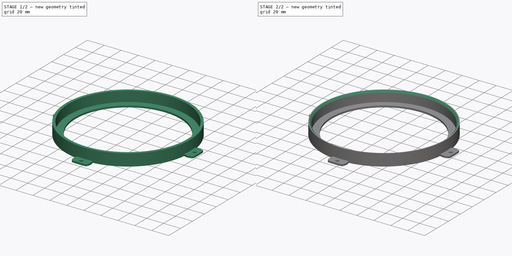
[diagram: build sequence overview — one tinted view per stage of 2, left to right]
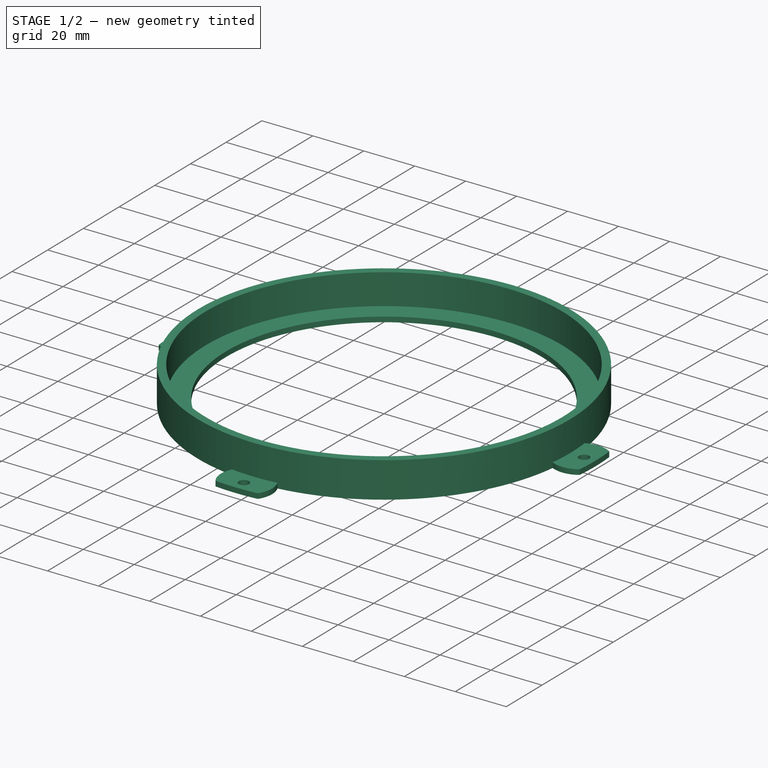
[diagram: stage 1 of 2 — iso view after this stage's code; geometry added in this stage tinted green]
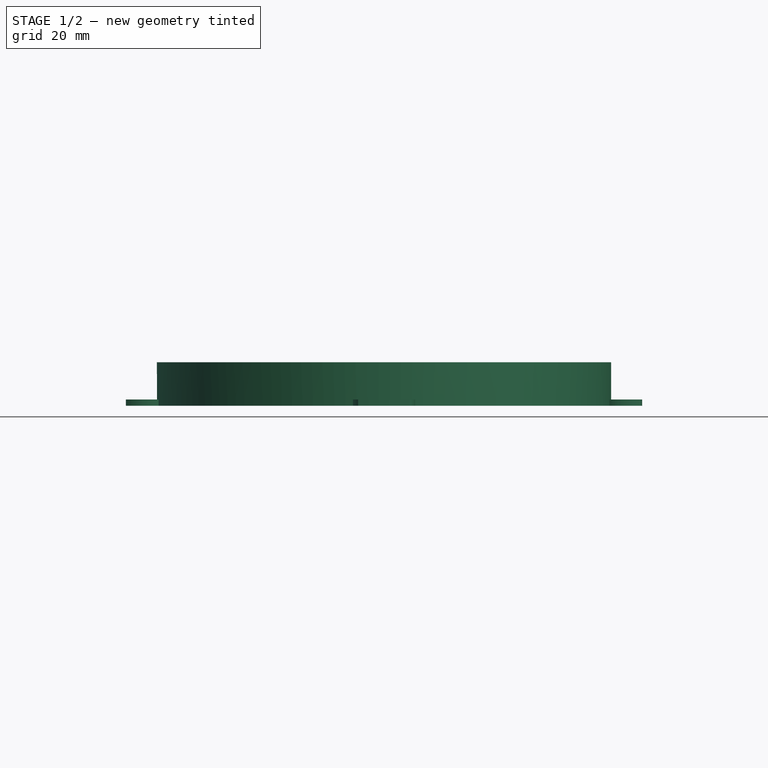
[diagram: stage 1 of 2 — front view after this stage's code; geometry added in this stage tinted green]
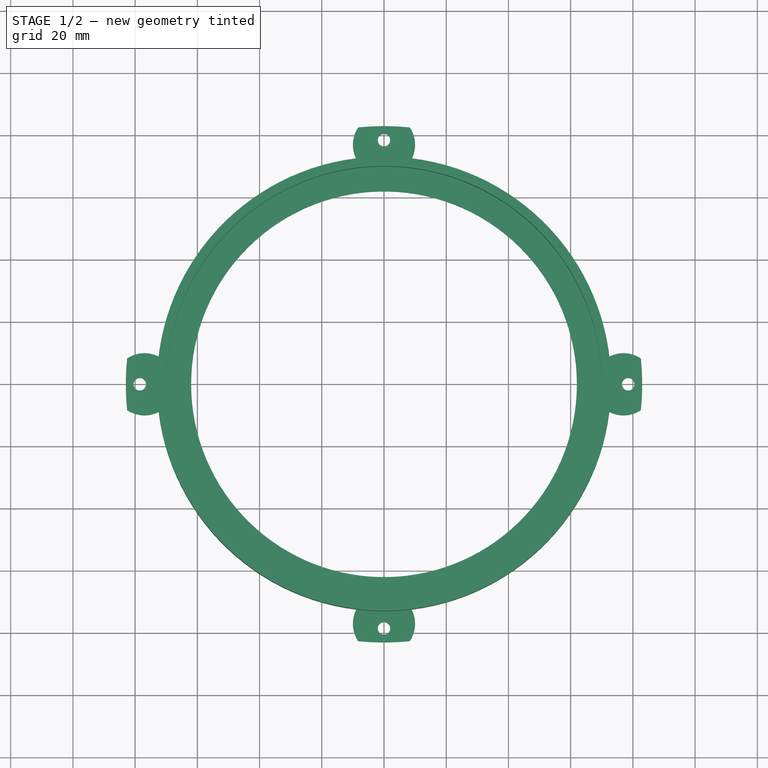
[diagram: stage 1 of 2 — top view after this stage's code; geometry added in this stage tinted green]
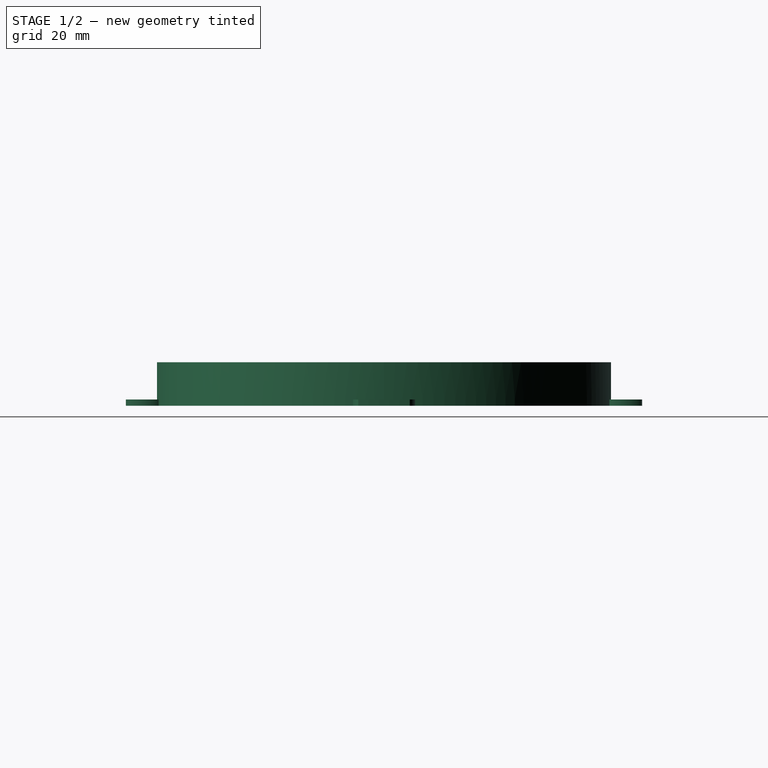
[diagram: stage 1 of 2 — right view after this stage's code; geometry added in this stage tinted green]
FCSTD DOCUMENT  (FreeCAD 0.19R24276 (Git))
Label: Support_for_bearing_d140_v1
License: All rights reserved
LicenseURL: http://en.wikipedia.org/wiki/All_rights_reserved
objects: Sketcher::SketchObject×2, PartDesign::Pad×2, PartDesign::Chamfer×1, PartDesign::Body×1
note: 9 computed .brp shape members not serialized (recipe doc carries the construction recipe); baked Part::Feature solids carry a one-line shape summary decoded from their .brp

FEATURE [Sketcher::SketchObject] Sketch
  FullyConstrained = false
  MapMode = 5
  Support = -> [XY_Plane]
  sketch-geometry (30):
    g0: Circle CenterX=-3.024e-13 CenterY=0 CenterZ=0 NormalX=0 NormalY=0 NormalZ=1 AngleXU=0 Radius=62
    g1: ArcOfCircle CenterX=-3.024e-13 CenterY=0 CenterZ=0 NormalX=0 NormalY=0 NormalZ=1 AngleXU=0 Radius=83 StartAngle=1.47076 EndAngle=1.67099
    g2: Circle CenterX=-3.024e-13 CenterY=0 CenterZ=0 NormalX=0 NormalY=0 NormalZ=1 AngleXU=0 Radius=78.5
    g3: LineSegment StartX=-3.024e-13 StartY=0 StartZ=0 EndX=-0.00618719 EndY=77 EndZ=0
    g4: LineSegment StartX=-3.024e-13 StartY=0 StartZ=0 EndX=-0.006187 EndY=-77 EndZ=0
    g5: LineSegment StartX=-3.024e-13 StartY=0 StartZ=0 EndX=-77 EndY=0 EndZ=0
    g6: Circle CenterX=-0.00630772 CenterY=78.5 CenterZ=0 NormalX=0 NormalY=0 NormalZ=1 AngleXU=0 Radius=2
    g7: Circle CenterX=78.5 CenterY=0 CenterZ=0 NormalX=0 NormalY=0 NormalZ=1 AngleXU=0 Radius=2
    g8: Circle CenterX=-0.00630772 CenterY=-78.5 CenterZ=0 NormalX=0 NormalY=0 NormalZ=1 AngleXU=0 Radius=2
    g9: Circle CenterX=-78.5 CenterY=0 CenterZ=0 NormalX=0 NormalY=0 NormalZ=1 AngleXU=0 Radius=2.9075e-12
    g10: Circle CenterX=-78.5 CenterY=0 CenterZ=0 NormalX=0 NormalY=0 NormalZ=1 AngleXU=0 Radius=2.9101e-12
    g11: Circle CenterX=-78.5 CenterY=0 CenterZ=0 NormalX=0 NormalY=0 NormalZ=1 AngleXU=0 Radius=2.9014e-12
    g12: Circle CenterX=-78.5 CenterY=0 CenterZ=0 NormalX=0 NormalY=0 NormalZ=1 AngleXU=0 Radius=2
    g13: Circle CenterX=-3.024e-13 CenterY=0 CenterZ=0 NormalX=0 NormalY=0 NormalZ=1 AngleXU=0 Radius=77
    g14: LineSegment StartX=-3.024e-13 StartY=0 StartZ=0 EndX=77 EndY=0 EndZ=0
    g15: ArcOfCircle CenterX=77 CenterY=0 CenterZ=0 NormalX=0 NormalY=0 NormalZ=1 AngleXU=0 Radius=10 StartAngle=0.97829 EndAngle=2.04266
    g16: ArcOfCircle CenterX=-0.00618719 CenterY=77 CenterZ=0 NormalX=0 NormalY=0 NormalZ=1 AngleXU=0 Radius=10 StartAngle=2.54917 EndAngle=3.61353
    g17: ArcOfCircle CenterX=-3.024e-13 CenterY=0 CenterZ=0 NormalX=0 NormalY=0 NormalZ=1 AngleXU=0 Radius=73 StartAngle=1.6932 EndAngle=3.01927
    g18: ArcOfCircle CenterX=-0.00618719 CenterY=77 CenterZ=0 NormalX=0 NormalY=0 NormalZ=1 AngleXU=0 Radius=10 StartAngle=5.8114 EndAngle=6.87577
    g19: ArcOfCircle CenterX=77 CenterY=0 CenterZ=0 NormalX=0 NormalY=0 NormalZ=1 AngleXU=0 Radius=10 StartAngle=4.24053 EndAngle=5.30489
    g20: ArcOfCircle CenterX=-77 CenterY=0 CenterZ=0 NormalX=0 NormalY=0 NormalZ=1 AngleXU=0 Radius=10 StartAngle=4.11988 EndAngle=5.18425
    g21: ArcOfCircle CenterX=-3.024e-13 CenterY=0 CenterZ=0 NormalX=0 NormalY=0 NormalZ=1 AngleXU=0 Radius=83 StartAngle=3.04148 EndAngle=3.2417
    g22: ArcOfCircle CenterX=-3.024e-13 CenterY=0 CenterZ=0 NormalX=0 NormalY=0 NormalZ=1 AngleXU=0 Radius=73 StartAngle=3.26391 EndAngle=4.58999
    g23: ArcOfCircle CenterX=-77 CenterY=0 CenterZ=0 NormalX=0 NormalY=0 NormalZ=1 AngleXU=0 Radius=10 StartAngle=1.09893 EndAngle=2.1633
    g24: ArcOfCircle CenterX=-0.006187 CenterY=-77 CenterZ=0 NormalX=0 NormalY=0 NormalZ=1 AngleXU=0 Radius=10 StartAngle=5.6906 EndAngle=6.75497
    g25: ArcOfCircle CenterX=-3.024e-13 CenterY=0 CenterZ=0 NormalX=0 NormalY=0 NormalZ=1 AngleXU=0 Radius=83 StartAngle=6.18307 EndAngle=6.3833
    g26: ArcOfCircle CenterX=-3.024e-13 CenterY=0 CenterZ=0 NormalX=0 NormalY=0 NormalZ=1 AngleXU=0 Radius=83 StartAngle=4.6122 EndAngle=4.81242
    g27: ArcOfCircle CenterX=-3.024e-13 CenterY=0 CenterZ=0 NormalX=0 NormalY=0 NormalZ=1 AngleXU=0 Radius=73 StartAngle=0.122322 EndAngle=1.44855
    g28: ArcOfCircle CenterX=-0.006187 CenterY=-77 CenterZ=0 NormalX=0 NormalY=0 NormalZ=1 AngleXU=0 Radius=10 StartAngle=2.66965 EndAngle=3.73402
    g29: ArcOfCircle CenterX=-3.024e-13 CenterY=0 CenterZ=0 NormalX=0 NormalY=0 NormalZ=1 AngleXU=0 Radius=73 StartAngle=4.83463 EndAngle=6.16086
  constraints (79):
    c: Coincident(g0,g-1)
    c: Coincident(g1,g0)
    c: Diameter(g0) = 124
    c: Diameter(g1) = 166
    c: Coincident(g2,g0)
    c: Diameter(g2) = 157
    c: Coincident(g3,g0)
    c: Coincident(g4,g0)
    c: Coincident(g5,g0)
    c: PointOnObject(g6,g2)
    c: PointOnObject(g8,g2)
    c: PointOnObject(g7,g2)
    c: PointOnObject(g9,g2)
    c: Tangent(g9,g2)
    c: Coincident(g10,g9)
    c: Tangent(g10,g2)
    c: Coincident(g11,g9)
    c: Tangent(g11,g2)
    c: Coincident(g12,g9)
    c: Equal(g12,g6)
    c: Equal(g6,g7)
    c: Equal(g7,g8)
    c: Diameter(g6) = 4
    c: Coincident(g13,g0)
    c: Diameter(g13) = 154
    c: Coincident(g14,g0)
    c: PointOnObject(g14,g13)
    c: Coincident(g15,g14)
    c: Diameter(g15) = 20
    c: PointOnObject(g3,g13)
    c: Coincident(g16,g3)
    c: Diameter(g16) = 20
    c: Coincident(g17,g0)
    c: Diameter(g17) = 146
    c: Coincident(g18,g1)
    c: Coincident(g15,g25)
    c: PointOnObject(g19,g1)
    c: Equal(g16,g18)
    c: Coincident(g16,g18)
    c: Equal(g15,g19)
    c: PointOnObject(g15,g17)
    c: Coincident(g15,g19)
    c: PointOnObject(g5,g13)
    c: Coincident(g20,g5)
    c: Diameter(g20) = 20
    c: Coincident(g17,g16)
    c: Coincident(g27,g18)
    c: Equal(g1,g21)
    c: Coincident(g1,g16)
    c: Coincident(g1,g21)
    c: Coincident(g23,g21)
    c: Equal(g17,g22)
    c: Coincident(g17,g22)
    c: Equal(g20,g23)
    c: Coincident(g23,g17)
    c: Coincident(g20,g23)
    c: Coincident(g20,g22)
    c: PointOnObject(g4,g13)
    c: Coincident(g24,g4)
    c: Diameter(g24) = 20
    c: Equal(g21,g25)
    c: Coincident(g26,g24)
    c: PointOnObject(g25,g19)
    c: Coincident(g21,g25)
    c: Equal(g21,g26)
    c: Coincident(g21,g20)
    c: Coincident(g26,g28)
    c: Coincident(g21,g26)
    c: Equal(g22,g27)
    c: Coincident(g29,g19)
    c: Coincident(g22,g27)
    c: PointOnObject(g27,g15)
    c: Equal(g24,g28)
    c: Coincident(g24,g28)
    c: PointOnObject(g24,g22)
    c: Equal(g22,g29)
    c: Coincident(g22,g28)
    c: Coincident(g22,g29)
    c: PointOnObject(g29,g24)
FEATURE [Sketcher::SketchObject] Sketch001
  FullyConstrained = true
  MapMode = 5
  Placement = pos=(0,0,2) rot=(0,0,1;0rad)
  sketch-geometry (2):
    g0: Circle CenterX=0 CenterY=0 CenterZ=0 NormalX=0 NormalY=0 NormalZ=1 AngleXU=0 Radius=70
    g1: Circle CenterX=0 CenterY=0 CenterZ=0 NormalX=0 NormalY=0 NormalZ=1 AngleXU=0 Radius=73
  constraints (4):
    c: Coincident(g0,g-1)
    c: Coincident(g1,g0)
    c: Diameter(g0) = 140
    c: Diameter(g1) = 146
FEATURE [PartDesign::Pad] Pad
  Direction = (1,1,1)
  Length = 2
  Length2 = 100
  Profile = -> Sketch
  Type = 0
FEATURE [PartDesign::Pad] Pad001
  BaseFeature = -> Pad
  Direction = (1,1,1)
  Length = 12
  Length2 = 100
  Profile = -> Sketch001
  Type = 0
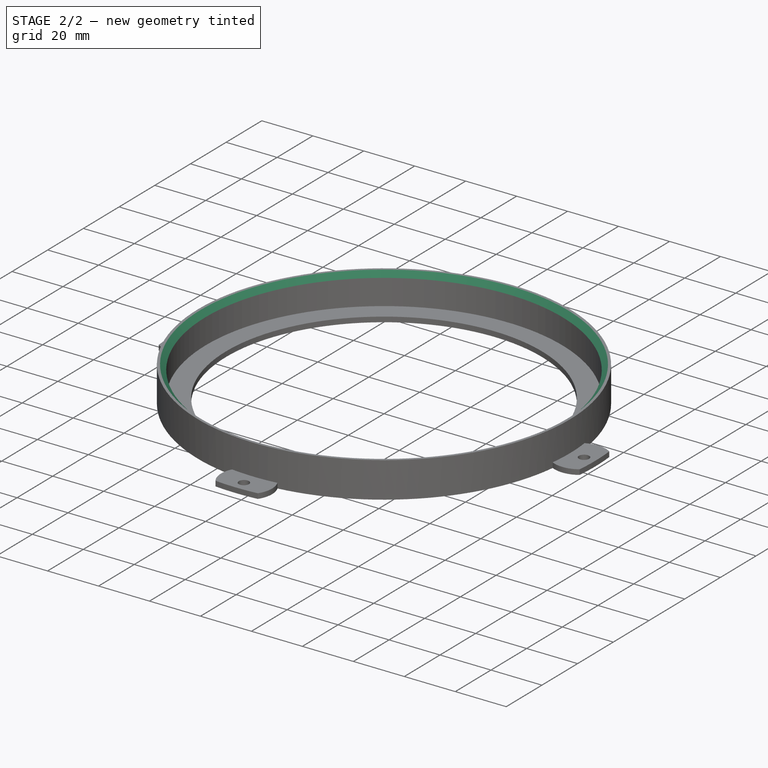
[diagram: stage 2 of 2 — iso view after this stage's code; geometry added in this stage tinted green]
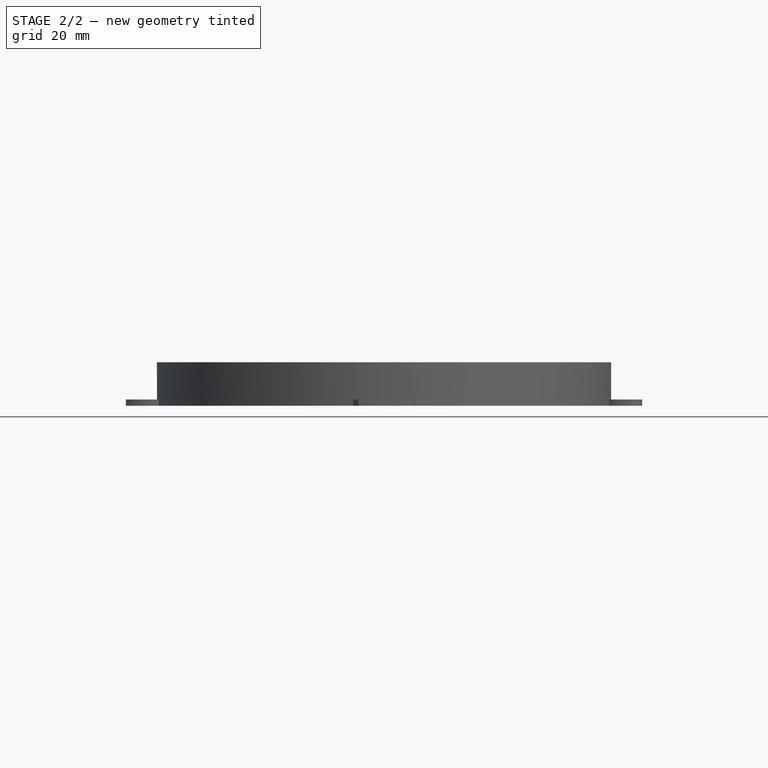
[diagram: stage 2 of 2 — front view after this stage's code; geometry added in this stage tinted green]
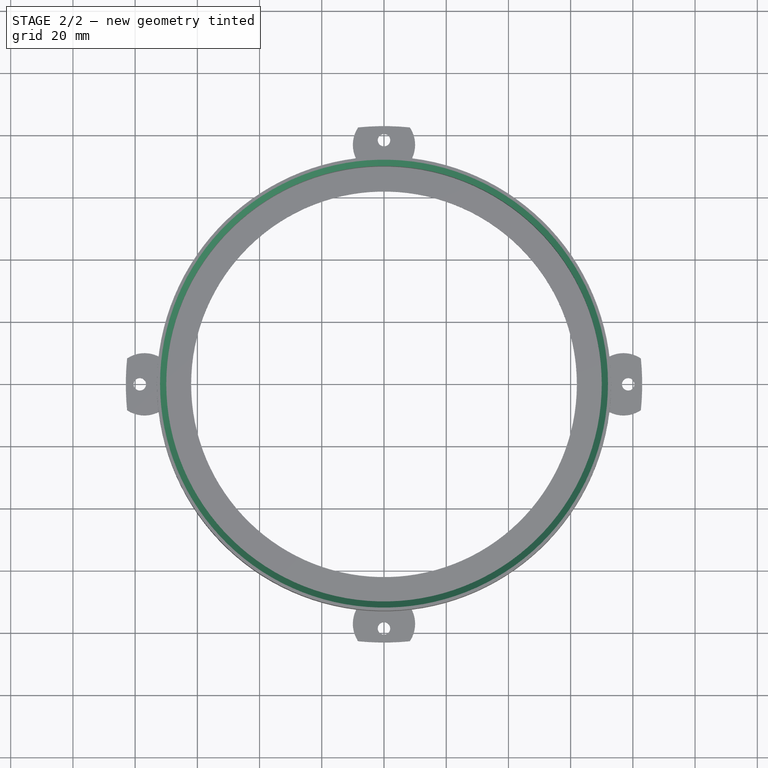
[diagram: stage 2 of 2 — top view after this stage's code; geometry added in this stage tinted green]
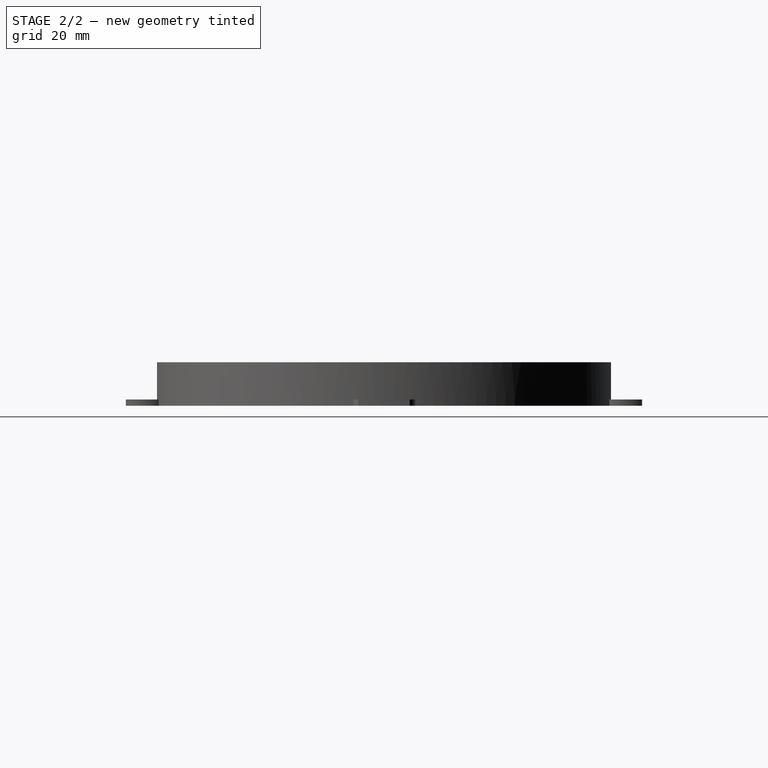
[diagram: stage 2 of 2 — right view after this stage's code; geometry added in this stage tinted green]
FEATURE [PartDesign::Chamfer] Chamfer
  Angle = 45
  Base = -> Pad001 [Edge72]
  BaseFeature = -> Pad001
  ChamferType = 0
  FlipDirection = false
  Size = 2
  Size2 = 1
  SupportTransform = false
FEATURE [PartDesign::Body] Body
  Group = -> [Sketch,Sketch001,Pad,Pad001,Chamfer]
  Origin = -> Origin
  Tip = -> Chamfer
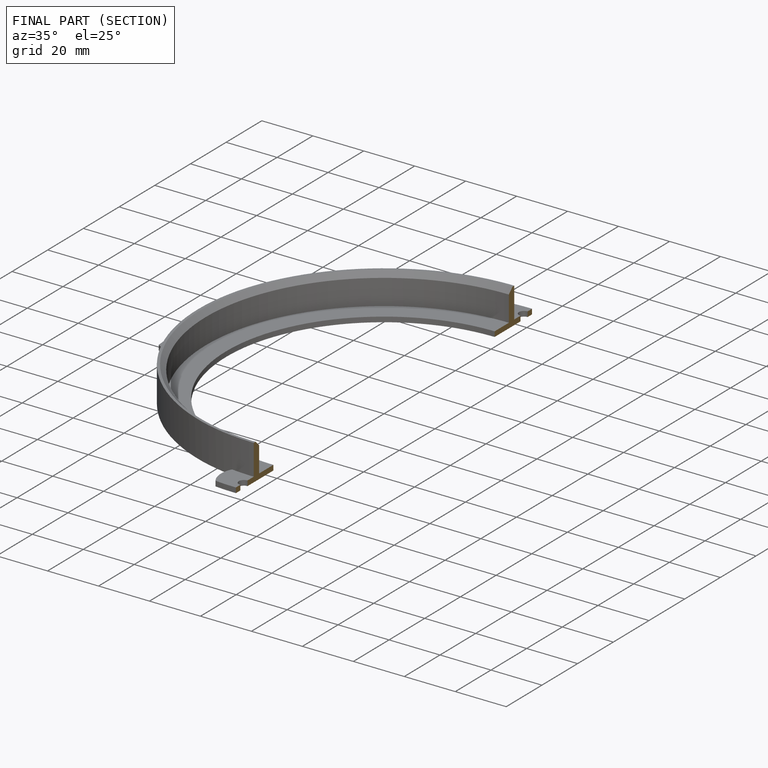
[diagram: finished part — half-section view (interior)]
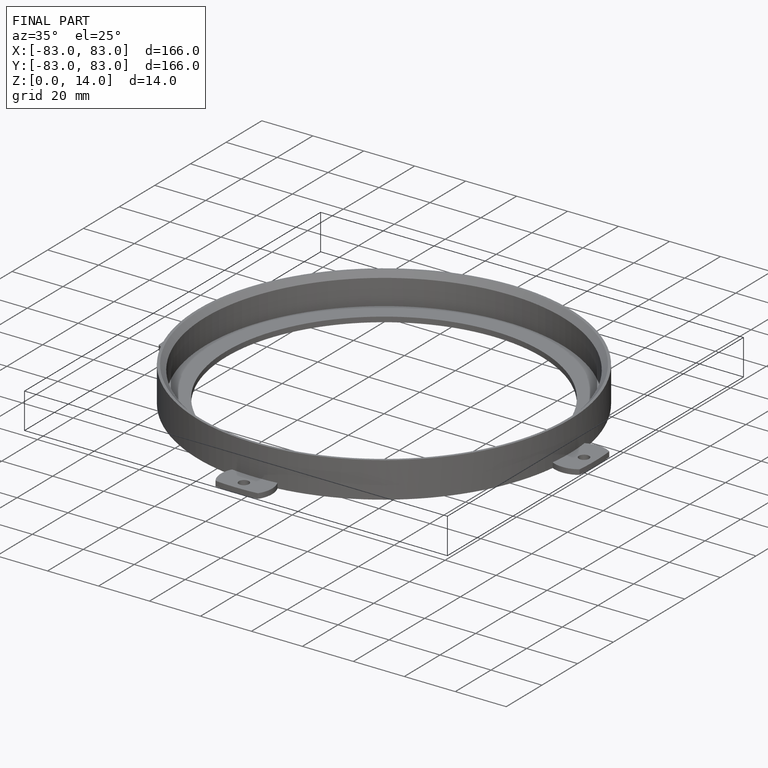
[diagram: finished part — iso view with bounding-box wireframe]
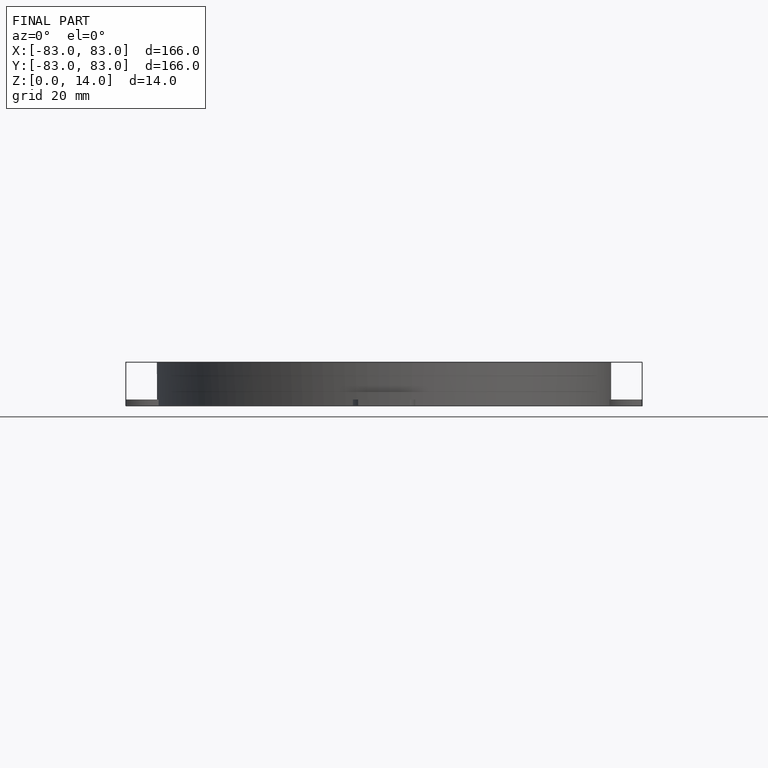
[diagram: finished part — front view with bounding-box wireframe]
